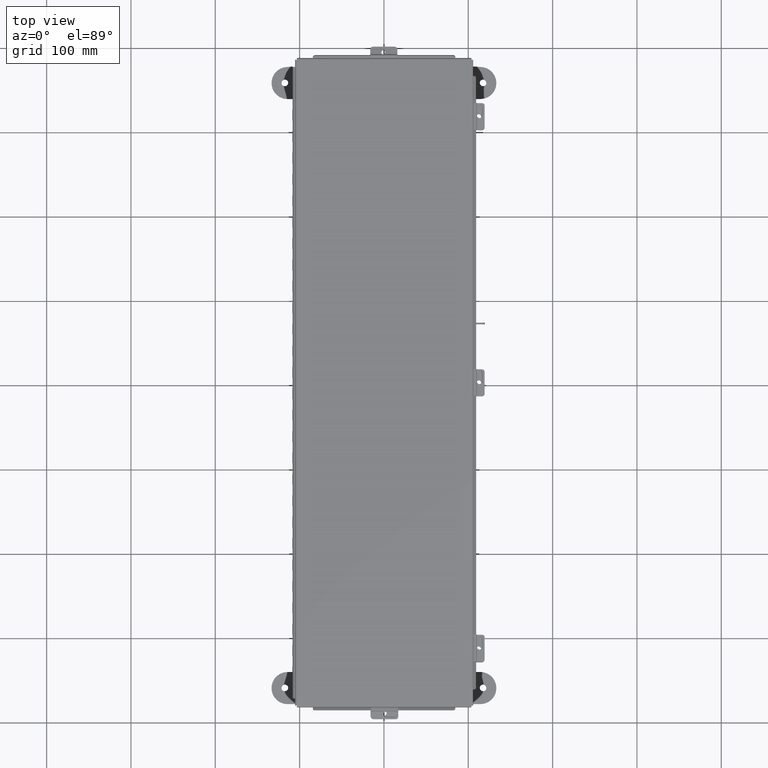
[diagram: clean part render]
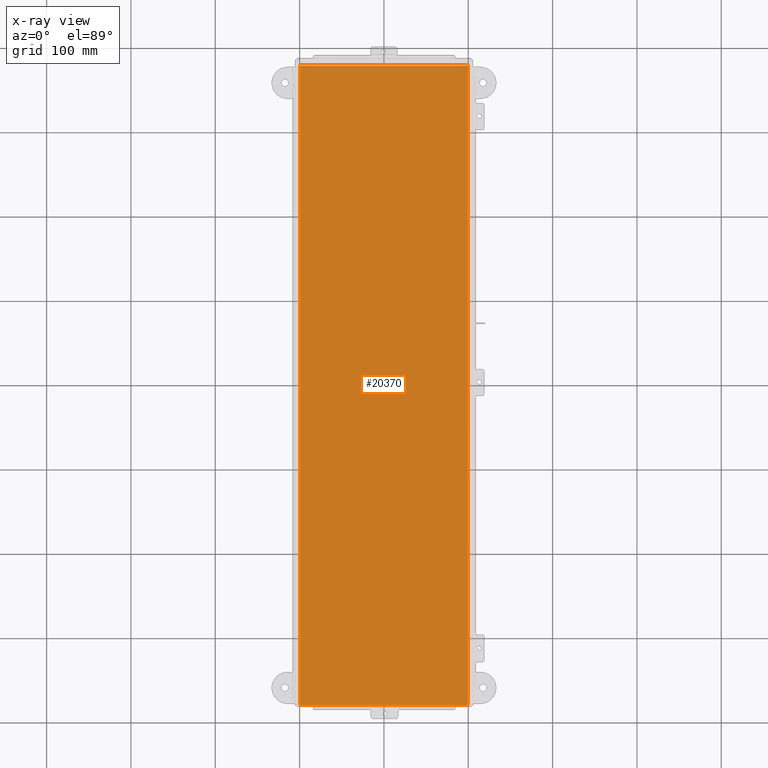
[diagram: x-ray — body ghosted, one internal face saturated and labeled with its STEP entity id]
A machine part, top view, then the same camera in x-ray: the body is ghosted and one INTERNAL B-rep face — a face not visible from any outside direction — is saturated and labeled: STEP entity #20370.
In plain terms, the highlighted planar face has unit normal (0, 0, -1).
Its self-contained STEP definition (entity closure, byte-faithful):
#1 = CARTESIAN_POINT ( 'NONE',  ( -3.912300000000000100, -14.92530000000000200, 3.158699242674304400E-016 ) ) ;
#984 = EDGE_LOOP ( 'NONE', ( #13350, #16396, #15461, #3017 ) ) ;
#1684 = DIRECTION ( 'NONE',  ( 0.0000000000000000000, 0.0000000000000000000, -1.000000000000000000 ) ) ;
#1760 = CARTESIAN_POINT ( 'NONE',  ( -4.000000000000000900, 14.92529999999999800, 0.0000000000000000000 ) ) ;
#3017 = ORIENTED_EDGE ( 'NONE', *, *, #22845, .T. ) ;
#3045 = CARTESIAN_POINT ( 'NONE',  ( -4.000000000000000900, -14.92530000000000200, 0.0000000000000000000 ) ) ;
#3687 = VECTOR ( 'NONE', #12373, 39.37007874015748100 ) ;
#7487 = CARTESIAN_POINT ( 'NONE',  ( 0.0000000000000000000, 0.0000000000000000000, 0.0000000000000000000 ) ) ;
#8081 = DIRECTION ( 'NONE',  ( -0.0000000000000000000, -1.000000000000000000, -0.0000000000000000000 ) ) ;
#9483 = VERTEX_POINT ( 'NONE', #13760 ) ;
#10361 = CARTESIAN_POINT ( 'NONE',  ( 3.912299999999999200, 14.92529999999999800, -5.036844738318485700E-016 ) ) ;
#11924 = VERTEX_POINT ( 'NONE', #16442 ) ;
#12176 = VECTOR ( 'NONE', #14337, 39.37007874015748100 ) ;
#12373 = DIRECTION ( 'NONE',  ( -0.0000000000000000000, 1.000000000000000000, -0.0000000000000000000 ) ) ;
#13145 = LINE ( 'NONE', #1760, #12176 ) ;
#13350 = ORIENTED_EDGE ( 'NONE', *, *, #22768, .F. ) ;
#13760 = CARTESIAN_POINT ( 'NONE',  ( -3.912300000000000100, 14.92529999999999800, 3.158699242674304400E-016 ) ) ;
#14337 = DIRECTION ( 'NONE',  ( -1.000000000000000000, -0.0000000000000000000, -0.0000000000000000000 ) ) ;
#15389 = FACE_OUTER_BOUND ( 'NONE', #984, .T. ) ;
#15461 = ORIENTED_EDGE ( 'NONE', *, *, #22820, .F. ) ;
#15865 = VERTEX_POINT ( 'NONE', #17546 ) ;
#15911 = VECTOR ( 'NONE', #8081, 39.37007874015748100 ) ;
#16396 = ORIENTED_EDGE ( 'NONE', *, *, #22775, .T. ) ;
#16442 = CARTESIAN_POINT ( 'NONE',  ( -3.912300000000000100, -14.92529999999999800, 3.158699242674304400E-016 ) ) ;
#17546 = CARTESIAN_POINT ( 'NONE',  ( 3.912299999999999200, 14.92529999999999600, -5.036844738318485700E-016 ) ) ;
#17776 = DIRECTION ( 'NONE',  ( -1.000000000000000000, 0.0000000000000000000, -0.0000000000000000000 ) ) ;
#19965 = LINE ( 'NONE', #10361, #15911 ) ;
#20370 = ADVANCED_FACE ( 'NONE', ( #15389 ), #21509, .F. ) ;
#20694 = CARTESIAN_POINT ( 'NONE',  ( 3.912299999999999200, -14.92530000000000200, -5.036844738318485700E-016 ) ) ;
#21067 = VERTEX_POINT ( 'NONE', #20694 ) ;
#21509 = PLANE ( 'NONE',  #22298 ) ;
#22175 = LINE ( 'NONE', #1, #3687 ) ;
#22263 = DIRECTION ( 'NONE',  ( 1.000000000000000000, 0.0000000000000000000, 0.0000000000000000000 ) ) ;
#22298 = AXIS2_PLACEMENT_3D ( 'NONE', #7487, #1684, #17776 ) ;
#22768 = EDGE_CURVE ( 'NONE', #15865, #21067, #19965, .T. ) ;
#22775 = EDGE_CURVE ( 'NONE', #15865, #9483, #13145, .T. ) ;
#22820 = EDGE_CURVE ( 'NONE', #11924, #9483, #22175, .T. ) ;
#22845 = EDGE_CURVE ( 'NONE', #11924, #21067, #23545, .T. ) ;
#23545 = LINE ( 'NONE', #3045, #25375 ) ;
#25375 = VECTOR ( 'NONE', #22263, 39.37007874015748100 ) ;